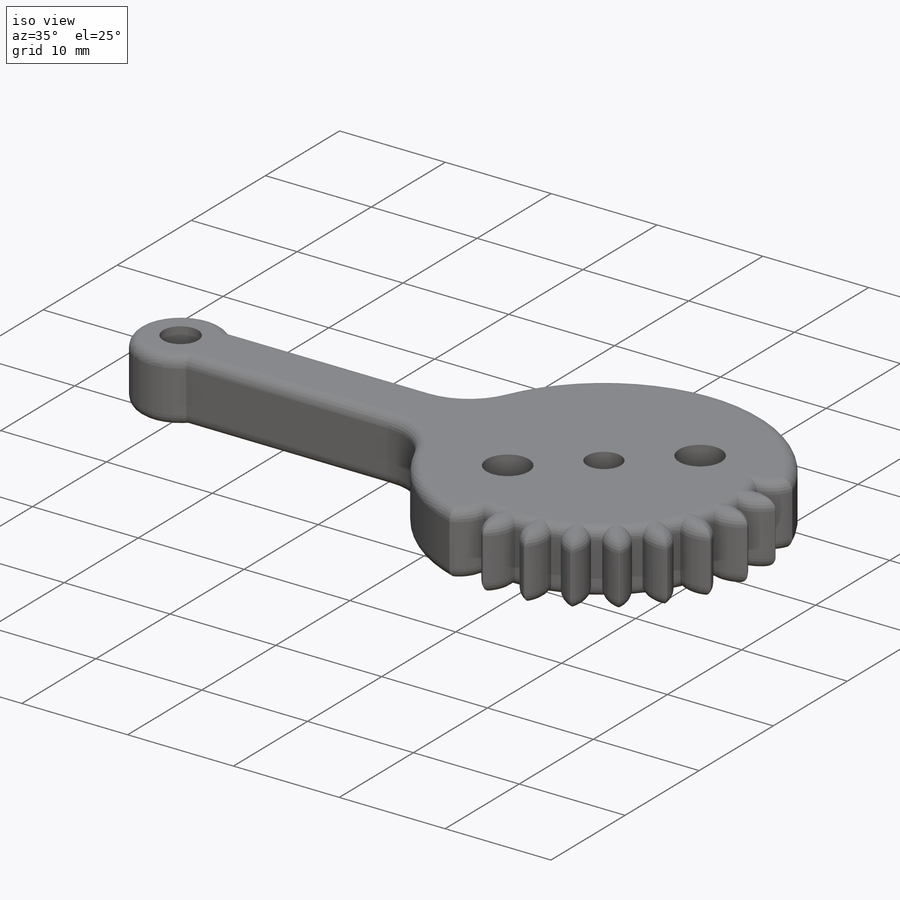
[diagram: iso view]
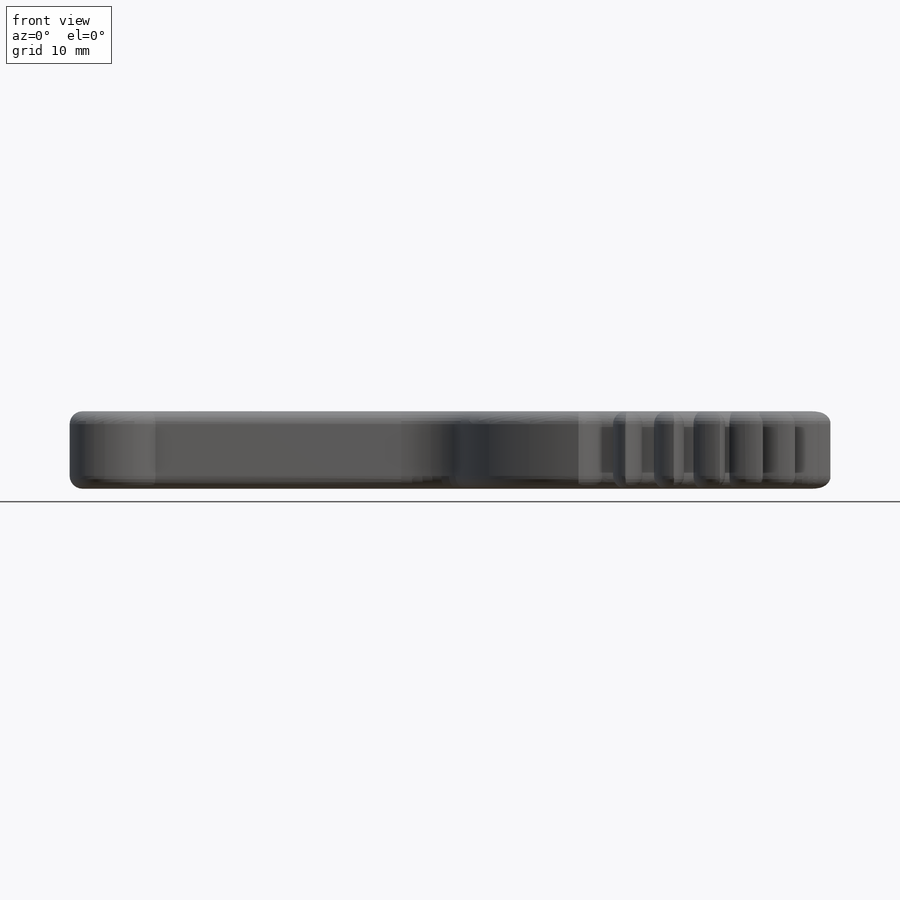
[diagram: front view]
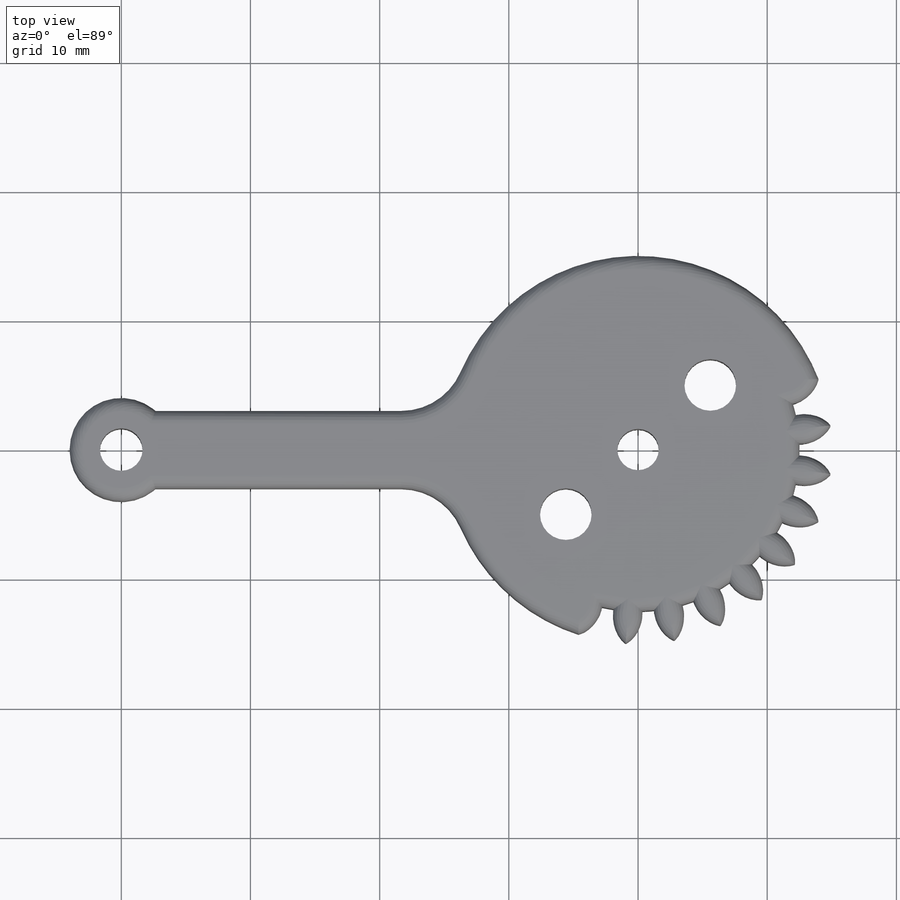
[diagram: top view]
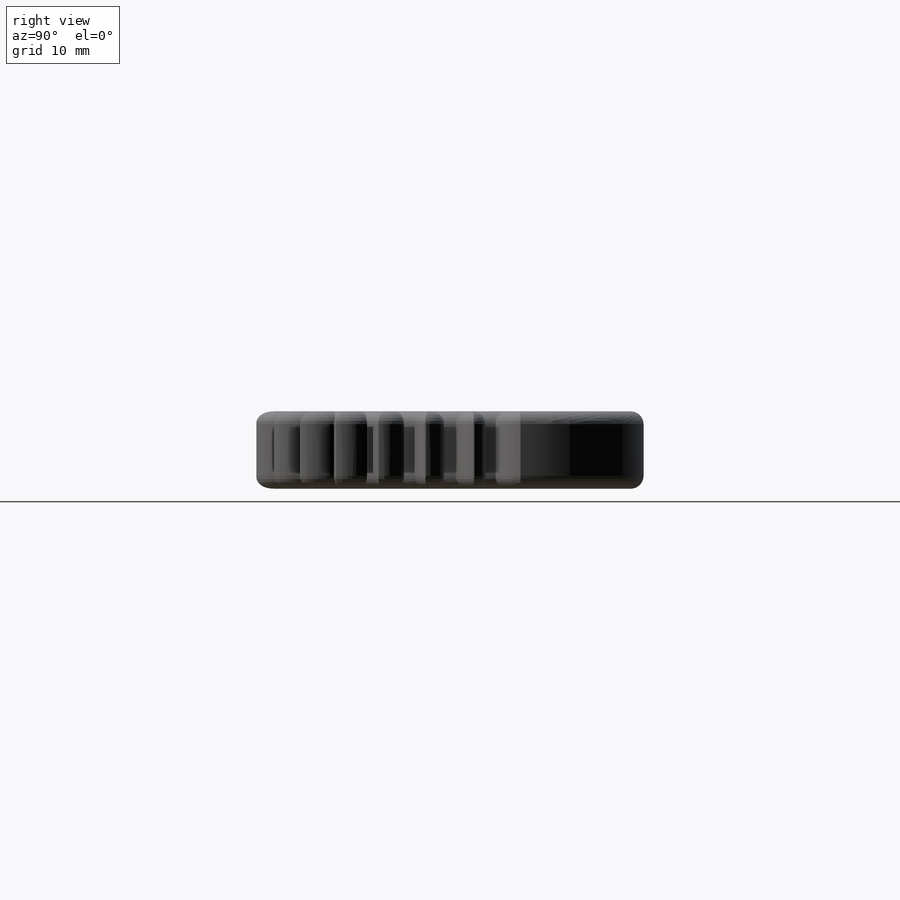
[diagram: right view]
SOLIDWORKS PART (.sldprt)
format: sldprt  version: not decoded by parser v0  size: 899,072 bytes
history: native  units: mm
features: sketch x4, plane x3, fillet x3, extrude x2, cut_extrude x2, material x1, pattern_circular x1 (+9 scaffold rows collapsed)
feature tree (25):
  scaffold x9  (default folders/planes/origin — collapsed)
  material  "Material <sin especificar>"
  plane  "Alzado"
  plane  "Planta"
  plane  "Vista lateral"
  sketch  "Croquis1"  dims[c1.D1=8.0mm c1.D2=3.3mm c1.D4=30.0mm c1.D5=25.0mm c1.D16=15.0mm c1.D7=3.2mm c1.D3=40.0mm c1.D6=6.0mm c2.D7=0.45mm c2.D8=0.5mm c2.D9=0.5mm c2.D10=0.5mm c2.D11=0.5mm c2.D12=0.5mm c2.D13=0.65mm c2.D14=0.9mm c2.D15=1.3mm c2.D16=1.9mm]
  extrude  "Saliente-Extruir1"  Depth=6mm
  sketch  "Croquis2"  dims[c1.D1=3.3mm c1.D2=30.1mm c1.D3=25.0mm c1.D9=30.1mm c1.D4=0.45mm c1.D5=0.5mm c1.D6=0.5mm c1.D7=0.5mm c1.D8=0.5mm c2.D9=0.5mm c2.D10=0.65mm c2.D11=0.9mm c2.D12=1.3mm c2.D13=1.9mm c2.D4=0.45mm c2.D5=0.5mm c2.D6=0.5mm c2.D7=0.5mm c2.D8=0.5mm c3.D9=0.5mm c3.D10=0.65mm c3.D11=0.9mm c3.D12=1.3mm c3.D13=1.9mm c3.D14=0.5mm c3.D15=0.5mm c3.D16=0.5mm c3.D17=0.5mm c3.D18=1.9mm c3.D19=0.45mm c3.D20=0.5mm c3.D21=0.65mm c3.D22=0.9mm c3.D23=1.3mm c3.D4=1.95mm c3.D5=0.5mm c3.D6=0.65mm c3.D7=0.9mm c3.D8=1.3mm c4.D9=1.9mm]
  cut_extrude  "Cortar-Extruir1"  Depth=6mm
  pattern_circular  "MatrizC1"  Count=25 Angle=360deg
  sketch  "Croquis3"  dims[D1=30.0mm]
  extrude  "Saliente-Extruir2"  Depth=6mm
  sketch  "Croquis4"  dims[c1.D3=15.0mm c1.D1=8.5mm c1.D2=8.5mm c2.D1=8.5mm c2.D2=8.5mm c3.D1=30.0mm]
  fillet  "Redondeo1"  Radius=5mm
  cut_extrude  "Cortar-Extruir2"  Depth=10mm
  fillet  "Redondeo2"  Radius=1mm
  fillet  "Redondeo3"  Radius=1mm
decode coverage: 12 of 12 modeling features carry decoded parameters
note: suppression state not decoded; provenance and decode notes live in map.json
